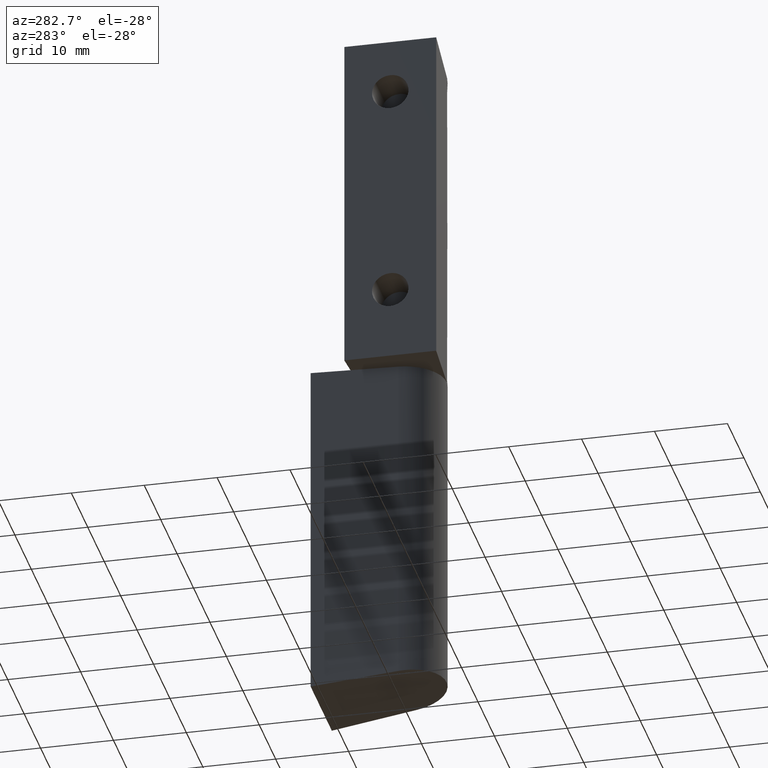
[diagram: clean part render]
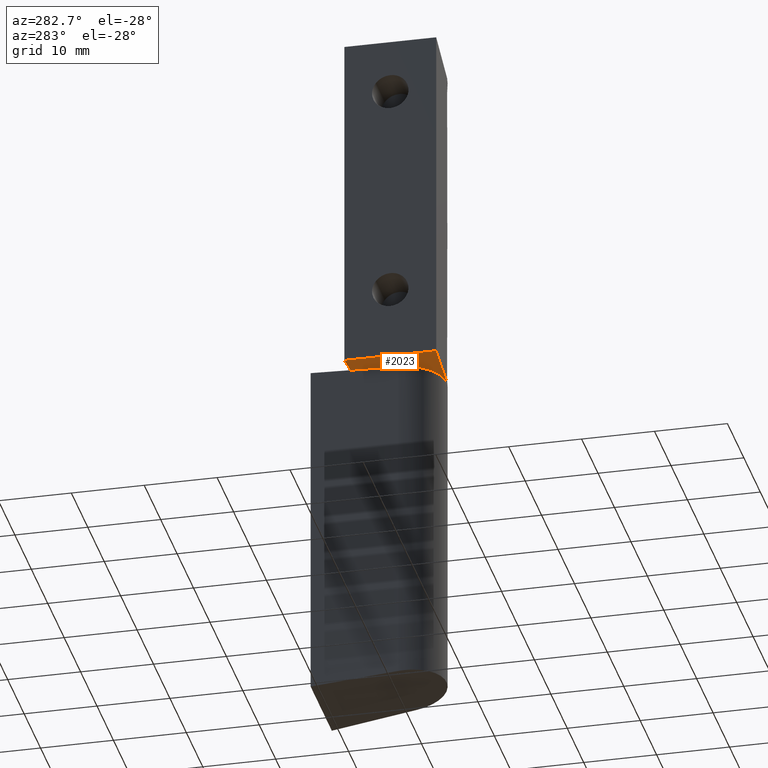
[diagram: same view with one face highlighted and labeled with its STEP entity id]
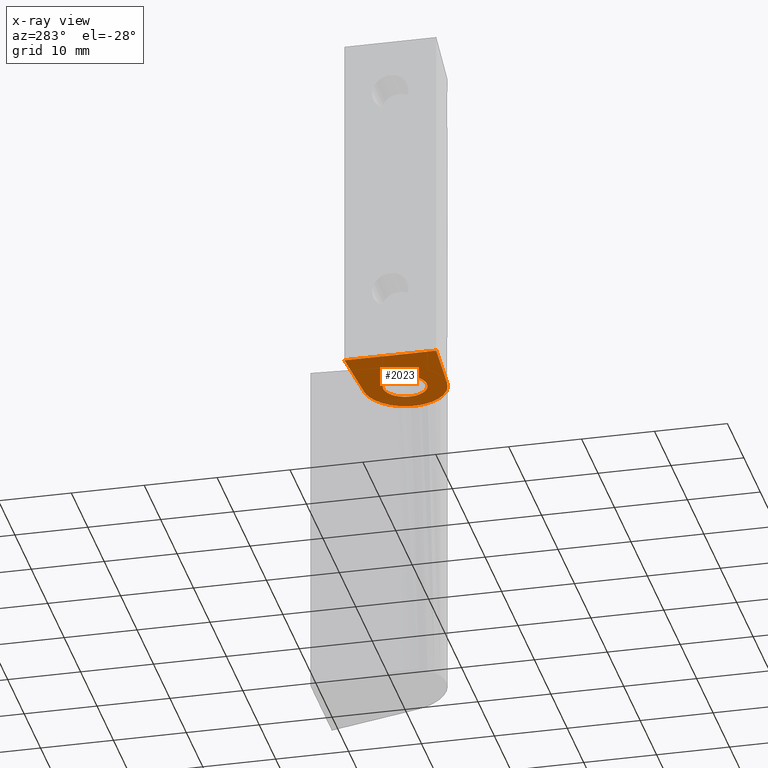
[diagram: x-ray of the same camera — body ghosted, the highlighted face saturated]
A machine part, auxiliary view. The second image highlights one B-rep face of the part: STEP entity #2023.
The next image is the same camera in x-ray: the body ghosted, the highlighted face saturated — about 8% of this face is hidden behind the body in this view.
In plain terms, the highlighted face is a freeform B-spline surface patch.
Its self-contained STEP definition (entity closure, byte-faithful):
#1282=CARTESIAN_POINT('',(-0.235377287316085,-2.990752001188960,47.500002256128901));
#1283=VERTEX_POINT('',#1282);
#1289=CARTESIAN_POINT('',(-3.000000000000100,0.0,47.500002256128901));
#1290=VERTEX_POINT('',#1289);
#1291=CARTESIAN_POINT('',(-3.000000000000100,0.0,47.500002256128901));
#1292=CARTESIAN_POINT('',(-3.000000000000100,-2.773171474728233,47.500002256128894));
#1293=CARTESIAN_POINT('',(-0.235377287316085,-2.990752001188959,47.500002256128901));
#1301=(BOUNDED_CURVE()B_SPLINE_CURVE(2,(#1291,#1292,#1293),.UNSPECIFIED.,.F.,.U.)B_SPLINE_CURVE_WITH_KNOTS((3,3),(0.0,0.236331300617583),.UNSPECIFIED.)CURVE()GEOMETRIC_REPRESENTATION_ITEM()RATIONAL_B_SPLINE_CURVE((1.0,0.723120658622986,0.969723356140128))REPRESENTATION_ITEM(''));
#1302=EDGE_CURVE('',#1290,#1283,#1301,.T.);
#1304=CARTESIAN_POINT('',(0.235377287315887,2.990752001188959,47.500002256128909));
#1305=VERTEX_POINT('',#1304);
#1306=CARTESIAN_POINT('',(0.235377287315887,2.990752001188959,47.500002256128916));
#1307=CARTESIAN_POINT('',(0.117870321155975,3.000000000000000,47.500002256128894));
#1308=CARTESIAN_POINT('',(-9.947598E-014,3.0,47.500002256128901));
#1309=CARTESIAN_POINT('',(-3.000000000000100,3.0,47.500002256128894));
#1310=CARTESIAN_POINT('',(-3.000000000000100,0.0,47.500002256128901));
#1318=(BOUNDED_CURVE()B_SPLINE_CURVE(2,(#1306,#1307,#1308,#1309,#1310),.UNSPECIFIED.,.F.,.U.)B_SPLINE_CURVE_WITH_KNOTS((3,2,3),(0.736331300617583,0.750000000000000,1.0),.UNSPECIFIED.)CURVE()GEOMETRIC_REPRESENTATION_ITEM()RATIONAL_B_SPLINE_CURVE((0.969723356140128,0.983986122563562,1.0,0.707106781186548,1.0))REPRESENTATION_ITEM(''));
#1319=EDGE_CURVE('',#1305,#1290,#1318,.T.);
#1395=CARTESIAN_POINT('',(2.999999999999901,0.0,47.500002256128901));
#1396=VERTEX_POINT('',#1395);
#1397=CARTESIAN_POINT('',(2.999999999999901,0.0,47.500002256128901));
#1398=CARTESIAN_POINT('',(2.999999999999901,2.773171474728224,47.500002256128901));
#1399=CARTESIAN_POINT('',(0.235377287315887,2.990752001188959,47.500002256128909));
#1407=(BOUNDED_CURVE()B_SPLINE_CURVE(2,(#1397,#1398,#1399),.UNSPECIFIED.,.F.,.U.)B_SPLINE_CURVE_WITH_KNOTS((3,3),(0.500000000000000,0.736331300617583),.UNSPECIFIED.)CURVE()GEOMETRIC_REPRESENTATION_ITEM()RATIONAL_B_SPLINE_CURVE((1.0,0.723120658622986,0.969723356140127))REPRESENTATION_ITEM(''));
#1408=EDGE_CURVE('',#1396,#1305,#1407,.T.);
#1410=CARTESIAN_POINT('',(-0.235377287316085,-2.990752001188959,47.500002256128901));
#1411=CARTESIAN_POINT('',(-0.117870321156173,-3.0,47.500002256128901));
#1412=CARTESIAN_POINT('',(-9.947598E-014,-3.0,47.500002256128901));
#1413=CARTESIAN_POINT('',(2.999999999999901,-3.0,47.500002256128894));
#1414=CARTESIAN_POINT('',(2.999999999999901,0.0,47.500002256128901));
#1422=(BOUNDED_CURVE()B_SPLINE_CURVE(2,(#1410,#1411,#1412,#1413,#1414),.UNSPECIFIED.,.F.,.U.)B_SPLINE_CURVE_WITH_KNOTS((3,2,3),(0.236331300617583,0.250000000000000,0.500000000000000),.UNSPECIFIED.)CURVE()GEOMETRIC_REPRESENTATION_ITEM()RATIONAL_B_SPLINE_CURVE((0.969723356140128,0.983986122563562,1.0,0.707106781186548,1.0))REPRESENTATION_ITEM(''));
#1423=EDGE_CURVE('',#1283,#1396,#1422,.T.);
#1901=CARTESIAN_POINT('',(0.371515839192952,5.687880015226800,47.500002256128802));
#1902=VERTEX_POINT('',#1901);
#1909=CARTESIAN_POINT('',(0.371515839193036,-5.687880015226591,47.500002256128802));
#1910=VERTEX_POINT('',#1909);
#1916=CARTESIAN_POINT('',(0.371515839193035,-5.687880015226586,47.500002256128802));
#1917=CARTESIAN_POINT('',(5.700000270735328,-5.339838854035990,47.500002256128802));
#1918=CARTESIAN_POINT('',(5.700000270735328,-8.526513E-014,47.500002256128802));
#1919=CARTESIAN_POINT('',(5.700000270735328,5.339838854035918,47.500002256128802));
#1920=CARTESIAN_POINT('',(0.371515839192952,5.687880015226800,47.500002256128802));
#1928=(BOUNDED_CURVE()B_SPLINE_CURVE(2,(#1916,#1917,#1918,#1919,#1920),.UNSPECIFIED.,.F.,.U.)B_SPLINE_CURVE_WITH_KNOTS((3,2,3),(0.0,0.500000000000000,1.0),.UNSPECIFIED.)CURVE()GEOMETRIC_REPRESENTATION_ITEM()RATIONAL_B_SPLINE_CURVE((1.0,0.729787028627706,1.0,0.729787028627706,1.0))REPRESENTATION_ITEM(''));
#1929=EDGE_CURVE('',#1910,#1902,#1928,.T.);
#1939=CARTESIAN_POINT('',(-9.000000427477300,6.300000299233999,47.500002256128802));
#1940=VERTEX_POINT('',#1939);
#1948=CARTESIAN_POINT('',(-9.000000427477300,6.300000299233999,47.500002256128802));
#1949=CARTESIAN_POINT('',(0.371515839192952,5.687880015226800,47.500002256128802));
#1950=QUASI_UNIFORM_CURVE('',1,(#1948,#1949),.UNSPECIFIED.,.F.,.U.);
#1951=EDGE_CURVE('',#1940,#1902,#1950,.T.);
#1963=CARTESIAN_POINT('',(-9.000000427477300,-6.300000299233999,47.500002256128802));
#1964=VERTEX_POINT('',#1963);
#1965=CARTESIAN_POINT('',(-9.000000427477300,-6.300000299233999,47.500002256128802));
#1966=CARTESIAN_POINT('',(-9.000000427477300,6.300000299233999,47.500002256128802));
#1967=QUASI_UNIFORM_CURVE('',1,(#1965,#1966),.UNSPECIFIED.,.F.,.U.);
#1968=EDGE_CURVE('',#1964,#1940,#1967,.T.);
#1998=CARTESIAN_POINT('',(0.371515839193036,-5.687880015226591,47.500002256128802));
#1999=CARTESIAN_POINT('',(-9.000000427477300,-6.300000299233999,47.500002256128802));
#2000=QUASI_UNIFORM_CURVE('',1,(#1998,#1999),.UNSPECIFIED.,.F.,.U.);
#2001=EDGE_CURVE('',#1910,#1964,#2000,.T.);
#2006=CARTESIAN_POINT('',(-9.734265019882297,6.929370186426438,47.500002256128901));
#2007=CARTESIAN_POINT('',(6.434265651709726,6.929370186426438,47.500002256128901));
#2008=CARTESIAN_POINT('',(-9.734265019882297,-6.929370637037573,47.500002256128901));
#2009=CARTESIAN_POINT('',(6.434265651709726,-6.929370637037573,47.500002256128901));
#2010=B_SPLINE_SURFACE_WITH_KNOTS('',1,1,((#2006,#2008),(#2007,#2009)),.UNSPECIFIED.,.F.,.F.,.U.,(2,2),(2,2),(0.0,16.168530671592020),(0.0,13.858740823464011),.UNSPECIFIED.);
#2011=ORIENTED_EDGE('',*,*,#2001,.T.);
#2012=ORIENTED_EDGE('',*,*,#1968,.T.);
#2013=ORIENTED_EDGE('',*,*,#1951,.T.);
#2014=ORIENTED_EDGE('',*,*,#1929,.F.);
#2015=EDGE_LOOP('',(#2011,#2012,#2013,#2014));
#2016=FACE_OUTER_BOUND('',#2015,.T.);
#2017=ORIENTED_EDGE('',*,*,#1408,.T.);
#2018=ORIENTED_EDGE('',*,*,#1319,.T.);
#2019=ORIENTED_EDGE('',*,*,#1302,.T.);
#2020=ORIENTED_EDGE('',*,*,#1423,.T.);
#2021=EDGE_LOOP('',(#2017,#2018,#2019,#2020));
#2022=FACE_BOUND('',#2021,.T.);
#2023=ADVANCED_FACE('',(#2016,#2022),#2010,.T.);